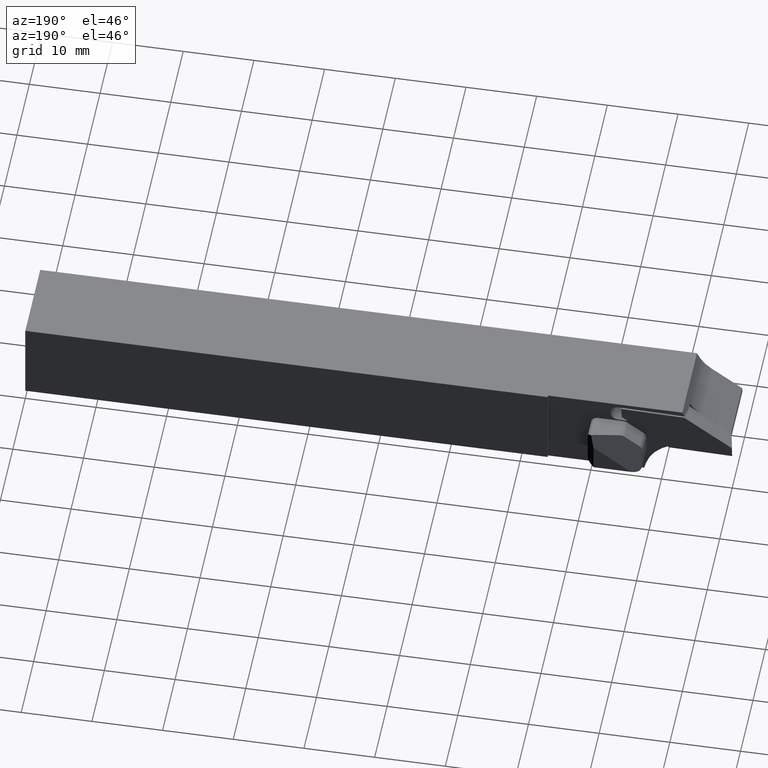
[diagram: clean part render]
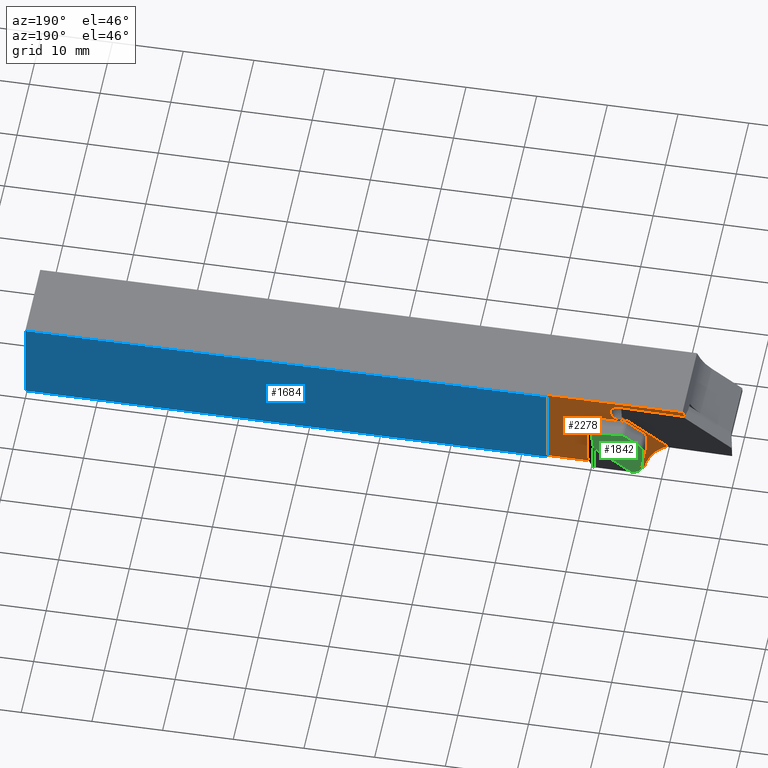
[diagram: same view with three faces highlighted in distinct colors, each labeled with its STEP entity id]
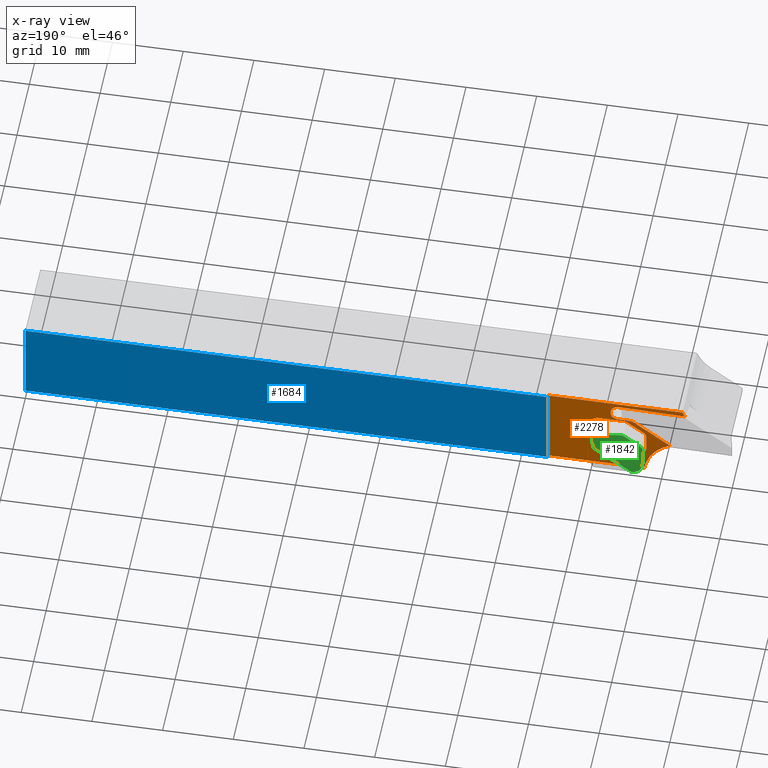
[diagram: x-ray of the same camera — body ghosted, the three highlighted faces saturated]
A machine part, auxiliary view with three faces highlighted in distinct colors.
The next image is the same camera in x-ray (body ghosted, the three faces saturated) — at least one of them is partly hidden behind the body in this view.
Their STEP definitions:

[orange] entity #2278 — the highlighted planar face has unit normal (0, 1, 0).
#6 = CARTESIAN_POINT ( 'NONE',  ( -86.79999999999999700, -0.2999999999999999900, -21.19999999999997800 ) ) ;
#17 = VERTEX_POINT ( 'NONE', #1345 ) ;
#19 = DIRECTION ( 'NONE',  ( 0.0000000000000000000, 1.000000000000000000, 0.0000000000000000000 ) ) ;
#33 = VERTEX_POINT ( 'NONE', #1709 ) ;
#39 = VECTOR ( 'NONE', #607, 999.9999999999998900 ) ;
#42 = VERTEX_POINT ( 'NONE', #221 ) ;
#53 = PLANE ( 'NONE',  #776 ) ;
#56 = CIRCLE ( 'NONE', #289, 1.000000000000000900 ) ;
#66 = DIRECTION ( 'NONE',  ( 0.0000000000000000000, 0.0000000000000000000, -1.000000000000000000 ) ) ;
#77 = CARTESIAN_POINT ( 'NONE',  ( -2.234323837058127100E-015, -0.2999999999999999900, -21.19999999999999900 ) ) ;
#108 = VERTEX_POINT ( 'NONE', #131 ) ;
#123 = CARTESIAN_POINT ( 'NONE',  ( -93.68371229827116100, -0.2999999999999947200, -24.50367457411554600 ) ) ;
#128 = EDGE_CURVE ( 'NONE', #2262, #42, #1356, .T. ) ;
#131 = CARTESIAN_POINT ( 'NONE',  ( -73.90000000000002000, -0.2999999999999999900, -11.99999999999999100 ) ) ;
#145 = EDGE_CURVE ( 'NONE', #1291, #1487, #1808, .T. ) ;
#151 = VERTEX_POINT ( 'NONE', #2015 ) ;
#161 = CIRCLE ( 'NONE', #1455, 6.100000000000001400 ) ;
#190 = LINE ( 'NONE', #1580, #1129 ) ;
#210 = VECTOR ( 'NONE', #2129, 1000.000000000000000 ) ;
#213 = VECTOR ( 'NONE', #272, 1000.000000000000000 ) ;
#216 = VECTOR ( 'NONE', #2017, 1000.000000000000000 ) ;
#221 = CARTESIAN_POINT ( 'NONE',  ( -83.79424118505915000, -0.2999999999999999300, -15.00759859925004800 ) ) ;
#257 = FACE_OUTER_BOUND ( 'NONE', #724, .T. ) ;
#265 = ORIENTED_EDGE ( 'NONE', *, *, #1277, .F. ) ;
#267 = VERTEX_POINT ( 'NONE', #723 ) ;
#272 = DIRECTION ( 'NONE',  ( -1.000000000000000000, 0.0000000000000000000, 2.428612866367529900E-016 ) ) ;
#289 = AXIS2_PLACEMENT_3D ( 'NONE', #1123, #2466, #1318 ) ;
#311 = VERTEX_POINT ( 'NONE', #2276 ) ;
#314 = DIRECTION ( 'NONE',  ( 2.275047181608926700E-015, 0.0000000000000000000, -1.000000000000000000 ) ) ;
#334 = EDGE_CURVE ( 'NONE', #1660, #151, #1406, .T. ) ;
#344 = ORIENTED_EDGE ( 'NONE', *, *, #334, .F. ) ;
#380 = DIRECTION ( 'NONE',  ( 0.0000000000000000000, 1.000000000000000000, 0.0000000000000000000 ) ) ;
#396 = CARTESIAN_POINT ( 'NONE',  ( -98.59943851816717600, -0.2999999999999947200, -9.805159158975778100 ) ) ;
#415 = EDGE_CURVE ( 'NONE', #108, #17, #2258, .T. ) ;
#431 = DIRECTION ( 'NONE',  ( 0.0000000000000000000, 1.000000000000000000, 0.0000000000000000000 ) ) ;
#455 = VECTOR ( 'NONE', #2228, 1000.000000000000200 ) ;
#477 = LINE ( 'NONE', #1756, #39 ) ;
#529 = LINE ( 'NONE', #2142, #1475 ) ;
#558 = ORIENTED_EDGE ( 'NONE', *, *, #1902, .F. ) ;
#571 = CARTESIAN_POINT ( 'NONE',  ( -87.79999999999999700, -0.2999999999999999900, -23.99999999999997900 ) ) ;
#579 = VERTEX_POINT ( 'NONE', #1336 ) ;
#593 = DIRECTION ( 'NONE',  ( 9.100188726435706600E-015, 0.0000000000000000000, -1.000000000000000000 ) ) ;
#607 = DIRECTION ( 'NONE',  ( 0.2588190451025182400, 0.0000000000000000000, -0.9659258262890690900 ) ) ;
#614 = DIRECTION ( 'NONE',  ( 0.8090169943749485600, -0.0000000000000000000, 0.5877852522924715800 ) ) ;
#621 = EDGE_CURVE ( 'NONE', #42, #579, #1975, .T. ) ;
#622 = CARTESIAN_POINT ( 'NONE',  ( -81.00000000000000000, -0.2999999999999999900, -21.19999999999997800 ) ) ;
#643 = ORIENTED_EDGE ( 'NONE', *, *, #2204, .F. ) ;
#647 = AXIS2_PLACEMENT_3D ( 'NONE', #763, #2105, #953 ) ;
#660 = CIRCLE ( 'NONE', #1333, 1.000000000000000900 ) ;
#714 = LINE ( 'NONE', #1256, #216 ) ;
#723 = CARTESIAN_POINT ( 'NONE',  ( -87.79156475790783500, -0.2999999999999947200, -22.92487839899018800 ) ) ;
#724 = EDGE_LOOP ( 'NONE', ( #2285, #1263, #1722, #1806, #814, #1288, #2002, #2444, #344, #1838, #643, #1683, #1942, #558 ) ) ;
#741 = FACE_BOUND ( 'NONE', #2363, .T. ) ;
#748 = VERTEX_POINT ( 'NONE', #807 ) ;
#755 = DIRECTION ( 'NONE',  ( -1.399343603954625700E-015, 0.0000000000000000000, -1.000000000000000000 ) ) ;
#757 = EDGE_CURVE ( 'NONE', #1319, #2401, #2360, .T. ) ;
#763 = CARTESIAN_POINT ( 'NONE',  ( -83.81256621181830700, -0.2999999999999999300, -13.95775851933583700 ) ) ;
#772 = CIRCLE ( 'NONE', #1105, 1.000000000000000900 ) ;
#776 = AXIS2_PLACEMENT_3D ( 'NONE', #796, #431, #1772 ) ;
#782 = VERTEX_POINT ( 'NONE', #1774 ) ;
#796 = CARTESIAN_POINT ( 'NONE',  ( -2.914335439641035900E-015, -0.2999999999999999900, -24.00000000000000000 ) ) ;
#798 = LINE ( 'NONE', #1898, #1817 ) ;
#801 = CARTESIAN_POINT ( 'NONE',  ( -83.80847012078450600, -0.2999999999999999900, -12.55782251557926600 ) ) ;
#805 = CARTESIAN_POINT ( 'NONE',  ( -82.77130001144753600, -0.3000000000000001600, -13.82261156240762100 ) ) ;
#807 = CARTESIAN_POINT ( 'NONE',  ( -92.90798231763534400, -0.2999999999999947200, -11.99999999999998900 ) ) ;
#809 = DIRECTION ( 'NONE',  ( 0.9998476951563911600, 0.0000000000000000000, 0.01745240643728342100 ) ) ;
#814 = ORIENTED_EDGE ( 'NONE', *, *, #621, .F. ) ;
#832 = EDGE_CURVE ( 'NONE', #1487, #1930, #1211, .T. ) ;
#834 = CARTESIAN_POINT ( 'NONE',  ( -80.00000000000000000, -0.2999999999999999900, -16.19999999999998200 ) ) ;
#858 = CARTESIAN_POINT ( 'NONE',  ( -1.457167719820518000E-015, -0.2999999999999999900, -12.00000000000000000 ) ) ;
#881 = CARTESIAN_POINT ( 'NONE',  ( -83.80847012078450600, -0.2999999999999999900, -12.55782251557926600 ) ) ;
#909 = EDGE_CURVE ( 'NONE', #1936, #2262, #1909, .T. ) ;
#911 = DIRECTION ( 'NONE',  ( 0.8090169943749479000, 0.0000000000000000000, 0.5877852522924724700 ) ) ;
#919 = EDGE_CURVE ( 'NONE', #108, #748, #1991, .T. ) ;
#924 = ORIENTED_EDGE ( 'NONE', *, *, #2468, .F. ) ;
#953 = DIRECTION ( 'NONE',  ( 0.0000000000000000000, 0.0000000000000000000, -1.000000000000000000 ) ) ;
#975 = CARTESIAN_POINT ( 'NONE',  ( -83.90811609786831600, -0.2999999999999999900, -13.68025127824040900 ) ) ;
#980 = VERTEX_POINT ( 'NONE', #2185 ) ;
#1015 = VECTOR ( 'NONE', #614, 1000.000000000000000 ) ;
#1037 = CARTESIAN_POINT ( 'NONE',  ( -82.66133237073384500, -0.2999999999999999900, -13.07907182387340100 ) ) ;
#1043 = DIRECTION ( 'NONE',  ( 0.0000000000000000000, 1.000000000000000000, 0.0000000000000000000 ) ) ;
#1105 = AXIS2_PLACEMENT_3D ( 'NONE', #2201, #1043, #2390 ) ;
#1114 = EDGE_CURVE ( 'NONE', #2208, #311, #1632, .T. ) ;
#1123 = CARTESIAN_POINT ( 'NONE',  ( -86.79999999999999700, -0.2999999999999999900, -20.19999999999997800 ) ) ;
#1129 = VECTOR ( 'NONE', #1782, 1000.000000000000200 ) ;
#1146 = CARTESIAN_POINT ( 'NONE',  ( -80.00000000000000000, -0.2999999999999999900, -20.19999999999998200 ) ) ;
#1153 = CARTESIAN_POINT ( 'NONE',  ( -84.55496023564457200, -0.2999999999999999900, -16.19999999999997800 ) ) ;
#1169 = VECTOR ( 'NONE', #755, 1000.000000000000000 ) ;
#1174 = CARTESIAN_POINT ( 'NONE',  ( -83.90811609786831600, -0.2999999999999999900, -13.68025127824040900 ) ) ;
#1175 = AXIS2_PLACEMENT_3D ( 'NONE', #123, #1442, #314 ) ;
#1196 = DIRECTION ( 'NONE',  ( 0.0000000000000000000, 1.000000000000000000, 0.0000000000000000000 ) ) ;
#1211 = LINE ( 'NONE', #77, #213 ) ;
#1214 = CIRCLE ( 'NONE', #1175, 6.100000000000001400 ) ;
#1225 = EDGE_CURVE ( 'NONE', #1930, #980, #56, .T. ) ;
#1232 = CARTESIAN_POINT ( 'NONE',  ( -83.94170598762444500, -0.2999999999999999900, -12.56014815628572400 ) ) ;
#1256 = CARTESIAN_POINT ( 'NONE',  ( 2.351110725738291700E-015, -0.2999999999999999900, -15.20000000000002800 ) ) ;
#1257 = CARTESIAN_POINT ( 'NONE',  ( -87.50348679315199300, -0.2999999999999973200, -23.99999999999999300 ) ) ;
#1263 = ORIENTED_EDGE ( 'NONE', *, *, #1716, .F. ) ;
#1269 = AXIS2_PLACEMENT_3D ( 'NONE', #2354, #1196, #66 ) ;
#1277 = EDGE_CURVE ( 'NONE', #980, #33, #2415, .T. ) ;
#1288 = ORIENTED_EDGE ( 'NONE', *, *, #128, .F. ) ;
#1291 = VERTEX_POINT ( 'NONE', #1146 ) ;
#1295 = ORIENTED_EDGE ( 'NONE', *, *, #832, .F. ) ;
#1318 = DIRECTION ( 'NONE',  ( 0.0000000000000000000, 0.0000000000000000000, -1.000000000000000000 ) ) ;
#1319 = VERTEX_POINT ( 'NONE', #1734 ) ;
#1333 = AXIS2_PLACEMENT_3D ( 'NONE', #1153, #19, #1343 ) ;
#1336 = CARTESIAN_POINT ( 'NONE',  ( -85.78282843481707700, -0.2999999999999999300, -15.04230951880999900 ) ) ;
#1343 = DIRECTION ( 'NONE',  ( 0.0000000000000000000, 0.0000000000000000000, -1.000000000000000000 ) ) ;
#1345 = CARTESIAN_POINT ( 'NONE',  ( -73.90000000000002000, -0.2999999999999999900, -23.99999999999998900 ) ) ;
#1356 = CIRCLE ( 'NONE', #647, 1.050000000000000500 ) ;
#1388 = VECTOR ( 'NONE', #1900, 1000.000000000000000 ) ;
#1392 = EDGE_CURVE ( 'NONE', #2421, #579, #1786, .T. ) ;
#1397 = ORIENTED_EDGE ( 'NONE', *, *, #1724, .F. ) ;
#1406 = LINE ( 'NONE', #881, #455 ) ;
#1419 = CARTESIAN_POINT ( 'NONE',  ( -82.77130001144753600, -0.3000000000000001600, -13.82261156240762100 ) ) ;
#1442 = DIRECTION ( 'NONE',  ( 0.0000000000000000000, 1.000000000000000000, 0.0000000000000000000 ) ) ;
#1454 = VECTOR ( 'NONE', #809, 1000.000000000000200 ) ;
#1455 = AXIS2_PLACEMENT_3D ( 'NONE', #396, #1735, #593 ) ;
#1459 = VECTOR ( 'NONE', #2092, 1000.000000000000200 ) ;
#1475 = VECTOR ( 'NONE', #1763, 1000.000000000000000 ) ;
#1487 = VERTEX_POINT ( 'NONE', #622 ) ;
#1504 = CARTESIAN_POINT ( 'NONE',  ( -81.00000000000000000, -0.2999999999999999900, -20.19999999999998200 ) ) ;
#1513 = LINE ( 'NONE', #1174, #1015 ) ;
#1535 = VECTOR ( 'NONE', #1812, 1000.000000000000000 ) ;
#1555 = CARTESIAN_POINT ( 'NONE',  ( -91.16098654826261300, -0.2999999999999999900, -18.94977011056524300 ) ) ;
#1560 = EDGE_CURVE ( 'NONE', #2401, #1291, #529, .T. ) ;
#1580 = CARTESIAN_POINT ( 'NONE',  ( -83.80847012078450600, -0.2999999999999999900, -12.55782251557926600 ) ) ;
#1632 = LINE ( 'NONE', #2057, #2141 ) ;
#1637 = ORIENTED_EDGE ( 'NONE', *, *, #1225, .F. ) ;
#1650 = CARTESIAN_POINT ( 'NONE',  ( -93.24227700878388700, -0.2999999999999999900, -12.72249022732956000 ) ) ;
#1660 = VERTEX_POINT ( 'NONE', #2182 ) ;
#1683 = ORIENTED_EDGE ( 'NONE', *, *, #919, .F. ) ;
#1687 = ORIENTED_EDGE ( 'NONE', *, *, #145, .F. ) ;
#1704 = CARTESIAN_POINT ( 'NONE',  ( -73.90000000000002000, -0.2999999999999999900, -23.99999999999989700 ) ) ;
#1709 = CARTESIAN_POINT ( 'NONE',  ( -87.79999999999999700, -0.2999999999999999900, -17.83111686586732200 ) ) ;
#1710 = DIRECTION ( 'NONE',  ( 0.0000000000000000000, 0.0000000000000000000, -1.000000000000000000 ) ) ;
#1716 = EDGE_CURVE ( 'NONE', #2253, #267, #1214, .T. ) ;
#1722 = ORIENTED_EDGE ( 'NONE', *, *, #2047, .T. ) ;
#1724 = EDGE_CURVE ( 'NONE', #782, #1319, #714, .T. ) ;
#1728 = CARTESIAN_POINT ( 'NONE',  ( -83.79424118505915000, -0.2999999999999999300, -15.00759859925004800 ) ) ;
#1734 = CARTESIAN_POINT ( 'NONE',  ( -81.00000000000000000, -0.2999999999999999900, -15.19999999999998200 ) ) ;
#1735 = DIRECTION ( 'NONE',  ( 0.0000000000000000000, 1.000000000000000000, 0.0000000000000000000 ) ) ;
#1752 = ORIENTED_EDGE ( 'NONE', *, *, #757, .F. ) ;
#1756 = CARTESIAN_POINT ( 'NONE',  ( -87.79156475790783500, -0.2999999999999947200, -22.92487839899018800 ) ) ;
#1763 = DIRECTION ( 'NONE',  ( -2.428612866367529900E-016, 0.0000000000000000000, -1.000000000000000000 ) ) ;
#1772 = DIRECTION ( 'NONE',  ( -2.428612866367529900E-016, 0.0000000000000000000, -1.000000000000000000 ) ) ;
#1774 = CARTESIAN_POINT ( 'NONE',  ( -84.55496023564457200, -0.2999999999999999900, -15.19999999999997800 ) ) ;
#1782 = DIRECTION ( 'NONE',  ( 0.9998476951563911600, 0.0000000000000000000, 0.01745240643728342100 ) ) ;
#1786 = LINE ( 'NONE', #975, #210 ) ;
#1806 = ORIENTED_EDGE ( 'NONE', *, *, #1392, .T. ) ;
#1808 = CIRCLE ( 'NONE', #2001, 1.000000000000000900 ) ;
#1812 = DIRECTION ( 'NONE',  ( -1.000000000000000000, 0.0000000000000000000, 1.214306433183765000E-016 ) ) ;
#1813 = VERTEX_POINT ( 'NONE', #1650 ) ;
#1817 = VECTOR ( 'NONE', #2095, 1000.000000000000000 ) ;
#1838 = ORIENTED_EDGE ( 'NONE', *, *, #2062, .F. ) ;
#1898 = CARTESIAN_POINT ( 'NONE',  ( -2.914335439641035900E-015, -0.2999999999999999900, -24.00000000000000000 ) ) ;
#1900 = DIRECTION ( 'NONE',  ( 2.428612866367529900E-016, 0.0000000000000000000, 1.000000000000000000 ) ) ;
#1902 = EDGE_CURVE ( 'NONE', #2457, #17, #798, .T. ) ;
#1909 =( BOUNDED_CURVE ( )  B_SPLINE_CURVE ( 3, ( #1232, #2382, #1037, #1419 ),
 .UNSPECIFIED., .F., .F. ) 
 B_SPLINE_CURVE_WITH_KNOTS ( ( 4, 4 ),
 ( 4.663205176518233400, 6.427249440251188200 ),
 .UNSPECIFIED. ) 
 CURVE ( )  GEOMETRIC_REPRESENTATION_ITEM ( )  RATIONAL_B_SPLINE_CURVE ( ( 1.000000000000000000, 0.7570608713015964900, 0.7570608713015964900, 1.000000000000000000 ) ) 
 REPRESENTATION_ITEM ( '' )  );
#1930 = VERTEX_POINT ( 'NONE', #6 ) ;
#1936 = VERTEX_POINT ( 'NONE', #2295 ) ;
#1942 = ORIENTED_EDGE ( 'NONE', *, *, #415, .T. ) ;
#1975 = LINE ( 'NONE', #1728, #1459 ) ;
#1991 = LINE ( 'NONE', #858, #1535 ) ;
#2001 = AXIS2_PLACEMENT_3D ( 'NONE', #1504, #380, #1710 ) ;
#2002 = ORIENTED_EDGE ( 'NONE', *, *, #909, .F. ) ;
#2015 = CARTESIAN_POINT ( 'NONE',  ( -84.37473616030483500, -0.2999999999999989300, -12.56770672606547400 ) ) ;
#2017 = DIRECTION ( 'NONE',  ( 1.000000000000000000, 0.0000000000000000000, -5.983461551567435600E-016 ) ) ;
#2037 = LINE ( 'NONE', #801, #1454 ) ;
#2047 = EDGE_CURVE ( 'NONE', #2253, #2421, #1513, .T. ) ;
#2057 = CARTESIAN_POINT ( 'NONE',  ( -33.50992594790976400, -0.2999999999999999900, 22.12245623103093500 ) ) ;
#2062 = EDGE_CURVE ( 'NONE', #1813, #1660, #2037, .T. ) ;
#2067 = ORIENTED_EDGE ( 'NONE', *, *, #1114, .F. ) ;
#2092 = DIRECTION ( 'NONE',  ( -0.9998476951563911600, 0.0000000000000000000, -0.01745240643728296000 ) ) ;
#2095 = DIRECTION ( 'NONE',  ( 1.000000000000000000, 0.0000000000000000000, -1.203966067220176700E-016 ) ) ;
#2105 = DIRECTION ( 'NONE',  ( 0.0000000000000000000, 1.000000000000000000, 0.0000000000000000000 ) ) ;
#2129 = DIRECTION ( 'NONE',  ( 0.8090169943749485600, -0.0000000000000000000, 0.5877852522924715800 ) ) ;
#2134 = ORIENTED_EDGE ( 'NONE', *, *, #2180, .F. ) ;
#2140 = ORIENTED_EDGE ( 'NONE', *, *, #1560, .F. ) ;
#2141 = VECTOR ( 'NONE', #911, 1000.000000000000000 ) ;
#2142 = CARTESIAN_POINT ( 'NONE',  ( -80.00000000000000000, -0.2999999999999999900, -23.99999999999997900 ) ) ;
#2180 = EDGE_CURVE ( 'NONE', #311, #782, #660, .T. ) ;
#2182 = CARTESIAN_POINT ( 'NONE',  ( -93.19354589173420300, -0.2999999999999999900, -12.72163962251743500 ) ) ;
#2185 = CARTESIAN_POINT ( 'NONE',  ( -87.79999999999999700, -0.2999999999999999900, -20.19999999999997800 ) ) ;
#2201 = CARTESIAN_POINT ( 'NONE',  ( -86.79999999999999700, -0.2999999999999999900, -17.83111686586732200 ) ) ;
#2204 = EDGE_CURVE ( 'NONE', #748, #1813, #161, .T. ) ;
#2208 = VERTEX_POINT ( 'NONE', #2309 ) ;
#2228 = DIRECTION ( 'NONE',  ( 0.9998476951563911600, 0.0000000000000000000, 0.01745240643728342100 ) ) ;
#2247 = EDGE_CURVE ( 'NONE', #267, #2457, #477, .T. ) ;
#2253 = VERTEX_POINT ( 'NONE', #1555 ) ;
#2258 = LINE ( 'NONE', #1704, #1169 ) ;
#2262 = VERTEX_POINT ( 'NONE', #805 ) ;
#2276 = CARTESIAN_POINT ( 'NONE',  ( -85.14274548793704900, -0.2999999999999999900, -15.39098300562502800 ) ) ;
#2278 = ADVANCED_FACE ( 'NONE', ( #741, #257 ), #53, .T. ) ;
#2285 = ORIENTED_EDGE ( 'NONE', *, *, #2247, .F. ) ;
#2295 = CARTESIAN_POINT ( 'NONE',  ( -83.94170598762444500, -0.2999999999999999900, -12.56014815628572400 ) ) ;
#2307 = EDGE_CURVE ( 'NONE', #151, #1936, #190, .T. ) ;
#2309 = CARTESIAN_POINT ( 'NONE',  ( -87.38778525229247400, -0.2999999999999999900, -17.02209987149235500 ) ) ;
#2354 = CARTESIAN_POINT ( 'NONE',  ( -81.00000000000000000, -0.2999999999999999900, -16.19999999999997800 ) ) ;
#2360 = CIRCLE ( 'NONE', #1269, 1.000000000000000900 ) ;
#2363 = EDGE_LOOP ( 'NONE', ( #2134, #2067, #924, #265, #1637, #1295, #1687, #2140, #1752, #1397 ) ) ;
#2371 = CARTESIAN_POINT ( 'NONE',  ( -91.11968330567144400, -0.2999999999999918800, -18.91976154827825600 ) ) ;
#2382 = CARTESIAN_POINT ( 'NONE',  ( -83.17666124345895200, -0.2999999999999999900, -12.52321013384783100 ) ) ;
#2390 = DIRECTION ( 'NONE',  ( -1.387778780781444400E-014, 0.0000000000000000000, -1.000000000000000000 ) ) ;
#2401 = VERTEX_POINT ( 'NONE', #834 ) ;
#2415 = LINE ( 'NONE', #571, #1388 ) ;
#2421 = VERTEX_POINT ( 'NONE', #2371 ) ;
#2444 = ORIENTED_EDGE ( 'NONE', *, *, #2307, .F. ) ;
#2457 = VERTEX_POINT ( 'NONE', #1257 ) ;
#2466 = DIRECTION ( 'NONE',  ( 0.0000000000000000000, 1.000000000000000000, 0.0000000000000000000 ) ) ;
#2468 = EDGE_CURVE ( 'NONE', #33, #2208, #772, .T. ) ;

[blue] entity #1684 — the highlighted planar face has unit normal (0, 1, 0).
#3 = CARTESIAN_POINT ( 'NONE',  ( -2.914335439641035900E-015, 0.0000000000000000000, -24.00000000000000000 ) ) ;
#153 = EDGE_CURVE ( 'NONE', #617, #397, #611, .T. ) ;
#218 = CARTESIAN_POINT ( 'NONE',  ( -73.90000000000002000, 0.0000000000000000000, -11.99999999999999100 ) ) ;
#236 = VERTEX_POINT ( 'NONE', #2263 ) ;
#254 = ORIENTED_EDGE ( 'NONE', *, *, #1418, .F. ) ;
#283 = EDGE_CURVE ( 'NONE', #397, #236, #1021, .T. ) ;
#301 = DIRECTION ( 'NONE',  ( 0.0000000000000000000, 1.000000000000000000, 0.0000000000000000000 ) ) ;
#397 = VERTEX_POINT ( 'NONE', #3 ) ;
#501 = DIRECTION ( 'NONE',  ( 1.000000000000000000, 0.0000000000000000000, -1.203966067220176700E-016 ) ) ;
#516 = VECTOR ( 'NONE', #1874, 1000.000000000000000 ) ;
#523 = ORIENTED_EDGE ( 'NONE', *, *, #153, .F. ) ;
#533 = AXIS2_PLACEMENT_3D ( 'NONE', #2389, #301, #1619 ) ;
#611 = LINE ( 'NONE', #2085, #2069 ) ;
#617 = VERTEX_POINT ( 'NONE', #1891 ) ;
#648 = VECTOR ( 'NONE', #795, 1000.000000000000000 ) ;
#693 = ORIENTED_EDGE ( 'NONE', *, *, #1595, .F. ) ;
#795 = DIRECTION ( 'NONE',  ( -1.399343603954625700E-015, 0.0000000000000000000, -1.000000000000000000 ) ) ;
#854 = PLANE ( 'NONE',  #533 ) ;
#947 = EDGE_LOOP ( 'NONE', ( #693, #1469, #523, #254 ) ) ;
#1021 = LINE ( 'NONE', #2451, #516 ) ;
#1322 = VERTEX_POINT ( 'NONE', #218 ) ;
#1361 = CARTESIAN_POINT ( 'NONE',  ( -73.90000000000002000, 0.0000000000000000000, -23.99999999999989700 ) ) ;
#1418 = EDGE_CURVE ( 'NONE', #1322, #617, #1720, .T. ) ;
#1469 = ORIENTED_EDGE ( 'NONE', *, *, #283, .F. ) ;
#1595 = EDGE_CURVE ( 'NONE', #236, #1322, #1997, .T. ) ;
#1619 = DIRECTION ( 'NONE',  ( -2.428612866367529900E-016, 0.0000000000000000000, -1.000000000000000000 ) ) ;
#1684 = ADVANCED_FACE ( 'NONE', ( #1964 ), #854, .T. ) ;
#1720 = LINE ( 'NONE', #1361, #648 ) ;
#1874 = DIRECTION ( 'NONE',  ( 2.428612866367529900E-016, 0.0000000000000000000, 1.000000000000000000 ) ) ;
#1891 = CARTESIAN_POINT ( 'NONE',  ( -73.90000000000002000, 0.0000000000000000000, -23.99999999999998900 ) ) ;
#1958 = CARTESIAN_POINT ( 'NONE',  ( 0.0000000000000000000, 0.0000000000000000000, -12.00000000000000000 ) ) ;
#1964 = FACE_OUTER_BOUND ( 'NONE', #947, .T. ) ;
#1997 = LINE ( 'NONE', #1958, #2440 ) ;
#2069 = VECTOR ( 'NONE', #501, 1000.000000000000000 ) ;
#2085 = CARTESIAN_POINT ( 'NONE',  ( -2.914335439641035900E-015, 0.0000000000000000000, -24.00000000000000000 ) ) ;
#2152 = DIRECTION ( 'NONE',  ( -1.000000000000000000, 0.0000000000000000000, 1.214306433183765000E-016 ) ) ;
#2263 = CARTESIAN_POINT ( 'NONE',  ( 0.0000000000000000000, 0.0000000000000000000, -12.00000000000000000 ) ) ;
#2389 = CARTESIAN_POINT ( 'NONE',  ( -2.914335439641035900E-015, 0.0000000000000000000, -24.00000000000000000 ) ) ;
#2440 = VECTOR ( 'NONE', #2152, 1000.000000000000000 ) ;
#2451 = CARTESIAN_POINT ( 'NONE',  ( -2.914335439641035900E-015, 0.0000000000000000000, -24.00000000000000000 ) ) ;

[green] entity #1842 — the highlighted planar face has unit normal (-0.1521, 0.9659, 0.2094).
#32 = VECTOR ( 'NONE', #255, 1000.000000000000100 ) ;
#84 =( BOUNDED_CURVE ( )  B_SPLINE_CURVE ( 3, ( #363, #746, #2286, #1132 ),
 .UNSPECIFIED., .F., .T. ) 
 B_SPLINE_CURVE_WITH_KNOTS ( ( 4, 4 ),
 ( 5.261062755763285600, 5.654866776461628500 ),
 .UNSPECIFIED. ) 
 CURVE ( )  GEOMETRIC_REPRESENTATION_ITEM ( )  RATIONAL_B_SPLINE_CURVE ( ( 1.000000000000000000, 0.9871182328514693800, 0.9871182328514693800, 1.000000000000000000 ) ) 
 REPRESENTATION_ITEM ( '' )  );
#94 = VECTOR ( 'NONE', #2251, 1000.000000000000100 ) ;
#105 = CARTESIAN_POINT ( 'NONE',  ( -86.79999999999999700, 3.426443581135909500, -21.19999999999997400 ) ) ;
#148 = PLANE ( 'NONE',  #1822 ) ;
#171 = VERTEX_POINT ( 'NONE', #1458 ) ;
#173 = ORIENTED_EDGE ( 'NONE', *, *, #2369, .F. ) ;
#180 = CARTESIAN_POINT ( 'NONE',  ( -87.79999999999999700, 2.467905635273527600, -17.50474132999092400 ) ) ;
#255 = DIRECTION ( 'NONE',  ( 0.8090169943749479000, 0.0000000000000000000, 0.5877852522924724700 ) ) ;
#302 = VECTOR ( 'NONE', #2394, 1000.000000000000100 ) ;
#345 = VERTEX_POINT ( 'NONE', #1431 ) ;
#363 = CARTESIAN_POINT ( 'NONE',  ( -80.61629597092341700, 3.116295970923405700, -15.27654387322925800 ) ) ;
#452 = CARTESIAN_POINT ( 'NONE',  ( -85.14274548793704900, 2.428203230275509200, -15.39098300562502400 ) ) ;
#504 = VERTEX_POINT ( 'NONE', #762 ) ;
#519 = DIRECTION ( 'NONE',  ( 0.8090169943749479000, 0.0000000000000000000, 0.5877852522924725800 ) ) ;
#527 = LINE ( 'NONE', #901, #94 ) ;
#538 = CARTESIAN_POINT ( 'NONE',  ( -87.38778525229247400, 2.428203230275509200, -17.02209987149237600 ) ) ;
#725 = VERTEX_POINT ( 'NONE', #1749 ) ;
#746 = CARTESIAN_POINT ( 'NONE',  ( -80.73830614691560500, 3.086090074756407700, -15.22584758700691200 ) ) ;
#749 = EDGE_LOOP ( 'NONE', ( #916, #1013, #2326, #1924, #1068, #1437, #930, #173, #1405, #1807 ) ) ;
#762 = CARTESIAN_POINT ( 'NONE',  ( -86.79999999999999700, 3.426443581135909500, -21.19999999999997400 ) ) ;
#793 = LINE ( 'NONE', #1420, #302 ) ;
#855 = CARTESIAN_POINT ( 'NONE',  ( -87.79999999999996900, 3.179155665955021100, -20.78578643762689300 ) ) ;
#872 = DIRECTION ( 'NONE',  ( -0.9878234810265276200, -0.1555788235353181000, 2.399040815720986800E-016 ) ) ;
#901 = CARTESIAN_POINT ( 'NONE',  ( -87.79999999999998300, -5.020410194930406100, 17.03937249673478100 ) ) ;
#916 = ORIENTED_EDGE ( 'NONE', *, *, #1000, .F. ) ;
#930 = ORIENTED_EDGE ( 'NONE', *, *, #1549, .T. ) ;
#949 = CARTESIAN_POINT ( 'NONE',  ( -87.79999999999999700, 3.052171547155405400, -20.19999999999998900 ) ) ;
#1000 = EDGE_CURVE ( 'NONE', #1647, #1190, #1868, .T. ) ;
#1011 = CARTESIAN_POINT ( 'NONE',  ( -81.00000000000001400, 3.500000000000000400, -17.32537413593567200 ) ) ;
#1013 = ORIENTED_EDGE ( 'NONE', *, *, #1047, .T. ) ;
#1047 = EDGE_CURVE ( 'NONE', #1647, #725, #793, .T. ) ;
#1068 = ORIENTED_EDGE ( 'NONE', *, *, #1845, .T. ) ;
#1092 = FACE_OUTER_BOUND ( 'NONE', #749, .T. ) ;
#1132 = CARTESIAN_POINT ( 'NONE',  ( -81.00000000000000000, 3.039271064614199200, -15.19999999999998300 ) ) ;
#1190 = VERTEX_POINT ( 'NONE', #1302 ) ;
#1207 = EDGE_CURVE ( 'NONE', #1866, #1495, #1456, .T. ) ;
#1238 = CARTESIAN_POINT ( 'NONE',  ( -87.38578643762690500, 3.334184218446711000, -21.19999999999997800 ) ) ;
#1279 = CARTESIAN_POINT ( 'NONE',  ( -31.15878493873985300, 3.500000000000000000, 18.88638825353109500 ) ) ;
#1285 = VERTEX_POINT ( 'NONE', #949 ) ;
#1302 = CARTESIAN_POINT ( 'NONE',  ( -80.61629597092341700, 3.116295970923405700, -15.27654387322925800 ) ) ;
#1312 = CARTESIAN_POINT ( 'NONE',  ( -87.38778525229247400, 2.428203230275509200, -17.02209987149237600 ) ) ;
#1360 = VECTOR ( 'NONE', #1992, 1000.000000000000100 ) ;
#1364 = VECTOR ( 'NONE', #1788, 999.9999999999998900 ) ;
#1377 = CARTESIAN_POINT ( 'NONE',  ( -84.87987993187748300, 2.428203230275509200, -15.19999999999997800 ) ) ;
#1405 = ORIENTED_EDGE ( 'NONE', *, *, #1648, .T. ) ;
#1420 = CARTESIAN_POINT ( 'NONE',  ( -85.44885899083009000, 3.500000000000000000, -20.55765939387273300 ) ) ;
#1431 = CARTESIAN_POINT ( 'NONE',  ( -81.00000000000000000, 3.039271064614199200, -15.19999999999998300 ) ) ;
#1437 = ORIENTED_EDGE ( 'NONE', *, *, #1207, .F. ) ;
#1456 =( BOUNDED_CURVE ( )  B_SPLINE_CURVE ( 3, ( #1312, #2455, #180, #1492 ),
 .UNSPECIFIED., .F., .T. ) 
 B_SPLINE_CURVE_WITH_KNOTS ( ( 4, 4 ),
 ( 5.421010862427532000E-016, 0.9424777960769316100 ),
 .UNSPECIFIED. ) 
 CURVE ( )  GEOMETRIC_REPRESENTATION_ITEM ( )  RATIONAL_B_SPLINE_CURVE ( ( 1.000000000000000000, 0.9273376827922463800, 0.9273376827922463800, 1.000000000000000000 ) ) 
 REPRESENTATION_ITEM ( '' )  );
#1458 = CARTESIAN_POINT ( 'NONE',  ( -84.55496023564457200, 2.479376972400807700, -15.19999999999998000 ) ) ;
#1492 = CARTESIAN_POINT ( 'NONE',  ( -87.79999999999999700, 2.538655839031935800, -17.83111686586731500 ) ) ;
#1495 = VERTEX_POINT ( 'NONE', #1563 ) ;
#1539 = CARTESIAN_POINT ( 'NONE',  ( -85.14274548793704900, 2.428203230275509200, -15.39098300562502400 ) ) ;
#1549 = EDGE_CURVE ( 'NONE', #1866, #2028, #2120, .T. ) ;
#1563 = CARTESIAN_POINT ( 'NONE',  ( -87.79999999999999700, 2.538655839031935800, -17.83111686586731500 ) ) ;
#1586 = CARTESIAN_POINT ( 'NONE',  ( -32.29437324547091500, 10.71024088418711700, -15.20000000000001000 ) ) ;
#1597 = CARTESIAN_POINT ( 'NONE',  ( -84.97045722955942900, 2.428203230275509200, -15.26580825883770800 ) ) ;
#1647 = VERTEX_POINT ( 'NONE', #1011 ) ;
#1648 = EDGE_CURVE ( 'NONE', #171, #345, #1872, .T. ) ;
#1668 = DIRECTION ( 'NONE',  ( -0.1521300177236804800, 0.9659258262890690900, 0.2093890059558333200 ) ) ;
#1670 = VECTOR ( 'NONE', #872, 999.9999999999998900 ) ;
#1727 = LINE ( 'NONE', #2404, #1670 ) ;
#1745 = EDGE_CURVE ( 'NONE', #725, #504, #1727, .T. ) ;
#1749 = CARTESIAN_POINT ( 'NONE',  ( -86.33296498788814700, 3.499999999999997800, -21.19999999999997400 ) ) ;
#1788 = DIRECTION ( 'NONE',  ( 0.9878234810265276200, 0.1555788235353181800, -5.910603818457733100E-016 ) ) ;
#1807 = ORIENTED_EDGE ( 'NONE', *, *, #1883, .F. ) ;
#1822 = AXIS2_PLACEMENT_3D ( 'NONE', #1279, #1668, #519 ) ;
#1842 = ADVANCED_FACE ( 'NONE', ( #1092 ), #148, .T. ) ;
#1845 = EDGE_CURVE ( 'NONE', #1285, #1495, #527, .T. ) ;
#1866 = VERTEX_POINT ( 'NONE', #538 ) ;
#1868 = LINE ( 'NONE', #2375, #1360 ) ;
#1872 = LINE ( 'NONE', #1586, #1364 ) ;
#1883 = EDGE_CURVE ( 'NONE', #1190, #345, #84, .T. ) ;
#1924 = ORIENTED_EDGE ( 'NONE', *, *, #2417, .F. ) ;
#1992 = DIRECTION ( 'NONE',  ( 0.1810375259169488300, -0.1810375259169486100, 0.9666699687172143300 ) ) ;
#2028 = VERTEX_POINT ( 'NONE', #1539 ) ;
#2120 = LINE ( 'NONE', #1377, #32 ) ;
#2158 =( BOUNDED_CURVE ( )  B_SPLINE_CURVE ( 3, ( #2199, #855, #1238, #105 ),
 .UNSPECIFIED., .F., .T. ) 
 B_SPLINE_CURVE_WITH_KNOTS ( ( 4, 4 ),
 ( 0.9424777960769487000, 2.513274122871834900 ),
 .UNSPECIFIED. ) 
 CURVE ( )  GEOMETRIC_REPRESENTATION_ITEM ( )  RATIONAL_B_SPLINE_CURVE ( ( 1.000000000000000000, 0.8047378541243672700, 0.8047378541243672700, 1.000000000000000000 ) ) 
 REPRESENTATION_ITEM ( '' )  );
#2173 = CARTESIAN_POINT ( 'NONE',  ( -84.55496023564457200, 2.479376972400807700, -15.19999999999998000 ) ) ;
#2199 = CARTESIAN_POINT ( 'NONE',  ( -87.79999999999999700, 3.052171547155405400, -20.19999999999998900 ) ) ;
#2251 = DIRECTION ( 'NONE',  ( 2.373486105525572800E-016, -0.2118548931553126700, 0.9773011328378530300 ) ) ;
#2286 = CARTESIAN_POINT ( 'NONE',  ( -80.86787658616890400, 3.060080050916034200, -15.19999999999997800 ) ) ;
#2326 = ORIENTED_EDGE ( 'NONE', *, *, #1745, .T. ) ;
#2343 =( BOUNDED_CURVE ( )  B_SPLINE_CURVE ( 3, ( #2173, #2365, #1597, #452 ),
 .UNSPECIFIED., .F., .T. ) 
 B_SPLINE_CURVE_WITH_KNOTS ( ( 4, 4 ),
 ( 5.654866776461628500, 6.283185307179582700 ),
 .UNSPECIFIED. ) 
 CURVE ( )  GEOMETRIC_REPRESENTATION_ITEM ( )  RATIONAL_B_SPLINE_CURVE ( ( 1.000000000000000000, 0.9673710108634361300, 0.9673710108634361300, 1.000000000000000000 ) ) 
 REPRESENTATION_ITEM ( '' )  );
#2365 = CARTESIAN_POINT ( 'NONE',  ( -84.76792023472437200, 2.445836500086377100, -15.19999999999998000 ) ) ;
#2369 = EDGE_CURVE ( 'NONE', #171, #2028, #2343, .T. ) ;
#2375 = CARTESIAN_POINT ( 'NONE',  ( -73.02928823086558900, -4.470711769134405600, 25.23512627687817700 ) ) ;
#2394 = DIRECTION ( 'NONE',  ( -0.8090169943749477800, 0.0000000000000000000, -0.5877852522924724700 ) ) ;
#2404 = CARTESIAN_POINT ( 'NONE',  ( -32.49426329512086700, 11.97941158609159400, -21.19999999999998900 ) ) ;
#2417 = EDGE_CURVE ( 'NONE', #1285, #504, #2158, .T. ) ;
#2455 = CARTESIAN_POINT ( 'NONE',  ( -87.65182860736474900, 2.428203230275507900, -17.21393859818957800 ) ) ;